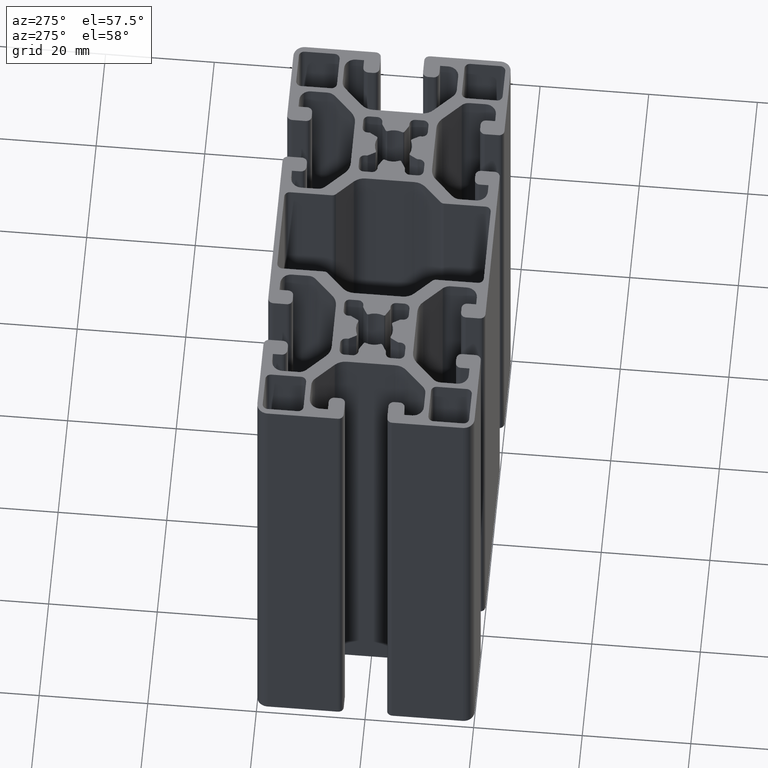
[diagram: clean part render]
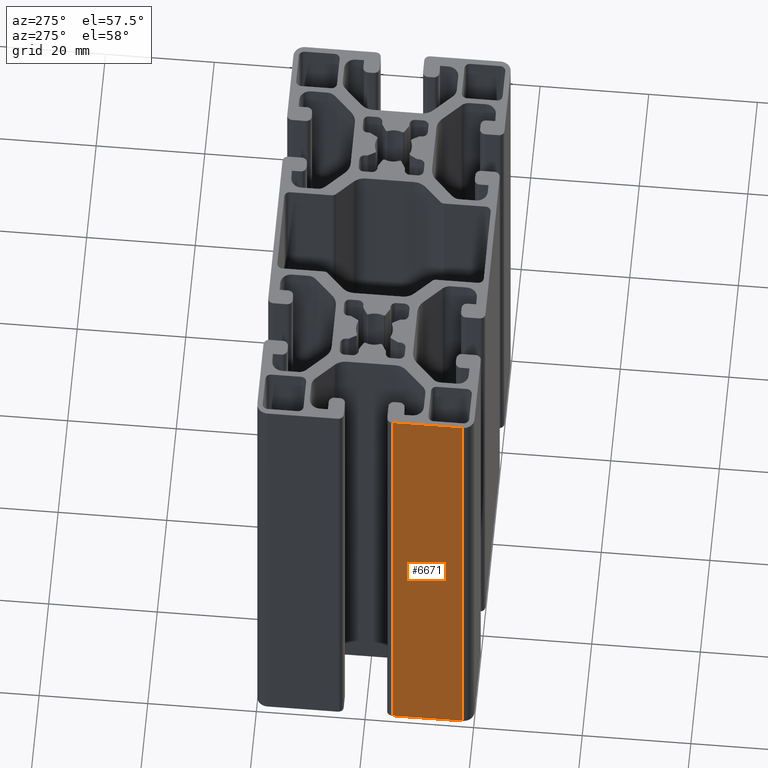
[diagram: same view with one face highlighted and labeled with its STEP entity id]
A machine part, auxiliary view. The second image highlights one B-rep face of the part: STEP entity #6671.
In plain terms, the highlighted planar face has unit normal (-1, -0, 0).
Its self-contained STEP definition (entity closure, byte-faithful):
#851=FACE_OUTER_BOUND('',#1185,.T.);
#1185=EDGE_LOOP('',(#5467,#5468,#5469,#5470));
#1371=LINE('',#9826,#2031);
#1847=LINE('',#11290,#2507);
#1848=LINE('',#11292,#2508);
#1849=LINE('',#11293,#2509);
#2031=VECTOR('',#7817,100.);
#2507=VECTOR('',#9287,13.);
#2508=VECTOR('',#9288,100.);
#2509=VECTOR('',#9289,13.);
#2691=VERTEX_POINT('',#9822);
#2692=VERTEX_POINT('',#9824);
#3183=VERTEX_POINT('',#11289);
#3184=VERTEX_POINT('',#11291);
#3429=EDGE_CURVE('',#2691,#2692,#1371,.T.);
#4159=EDGE_CURVE('',#3183,#2692,#1847,.T.);
#4160=EDGE_CURVE('',#3183,#3184,#1848,.T.);
#4161=EDGE_CURVE('',#3184,#2691,#1849,.T.);
#5467=ORIENTED_EDGE('',*,*,#3429,.T.);
#5468=ORIENTED_EDGE('',*,*,#4159,.F.);
#5469=ORIENTED_EDGE('',*,*,#4160,.T.);
#5470=ORIENTED_EDGE('',*,*,#4161,.T.);
#6341=PLANE('',#7335);
#6671=ADVANCED_FACE('',(#851),#6341,.T.);
#7335=AXIS2_PLACEMENT_3D('',#11288,#9285,#9286);
#7817=DIRECTION('',(0.,0.,-1.));
#9285=DIRECTION('center_axis',(-1.,-2.46716227694479E-16,0.));
#9286=DIRECTION('ref_axis',(0.,-1.,0.));
#9287=DIRECTION('',(-2.46716227694479E-16,1.,0.));
#9288=DIRECTION('',(0.,0.,1.));
#9289=DIRECTION('',(-2.46716227694479E-16,1.,0.));
#9822=CARTESIAN_POINT('',(-40.,-5.,100.));
#9824=CARTESIAN_POINT('',(-40.,-5.,0.));
#9826=CARTESIAN_POINT('',(-40.,-5.,0.));
#11288=CARTESIAN_POINT('Origin',(-40.,18.,0.));
#11289=CARTESIAN_POINT('',(-40.,-18.,0.));
#11290=CARTESIAN_POINT('',(-40.,9.,0.));
#11291=CARTESIAN_POINT('',(-40.,-18.,100.));
#11292=CARTESIAN_POINT('',(-40.,-18.,0.));
#11293=CARTESIAN_POINT('',(-40.,9.,100.));